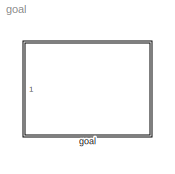
MODEL goal
KIND library
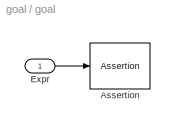
BLOCK [SubSystem] goal
  FunctionWithSeparateData = off
  MaskHideContents = off
  MinAlgLoopOccurrences = off
  Opaque = off
  Ports = [1]
  PropExecContextOutsideSubsystem = off
  RTWSystemCode = Auto
  RequestExecContextInheritance = off
  SID = 3
  TreatAsAtomicUnit = on
BLOCK [Assertion] goal/Assertion
  SID = 1
  StopWhenAssertionFail = off
BLOCK [Inport] goal/Expr
  IconDisplay = Port number
  SID = 4
LINE goal/Expr:1 -> goal/Assertion:1
